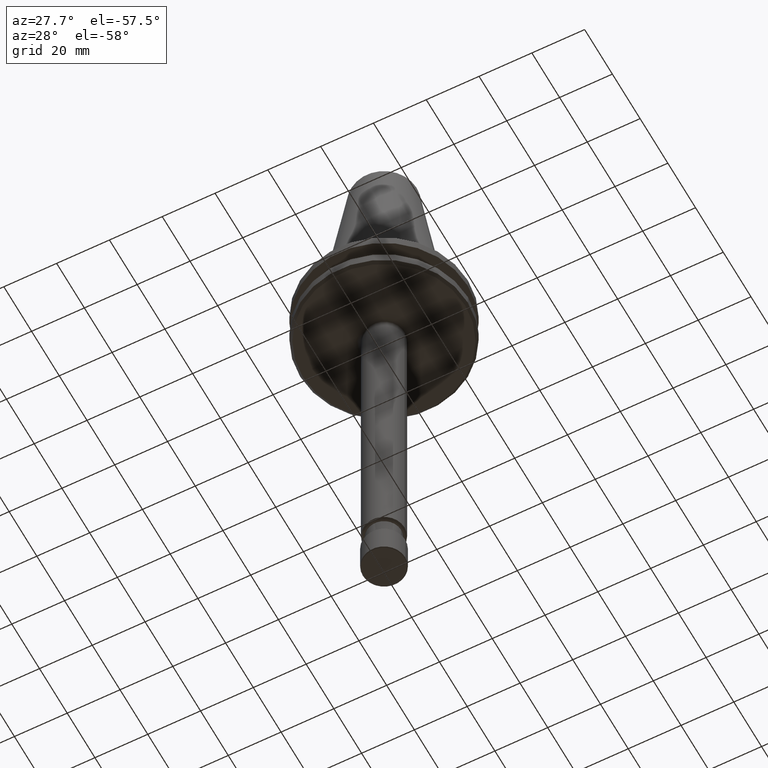
[diagram: clean part render]
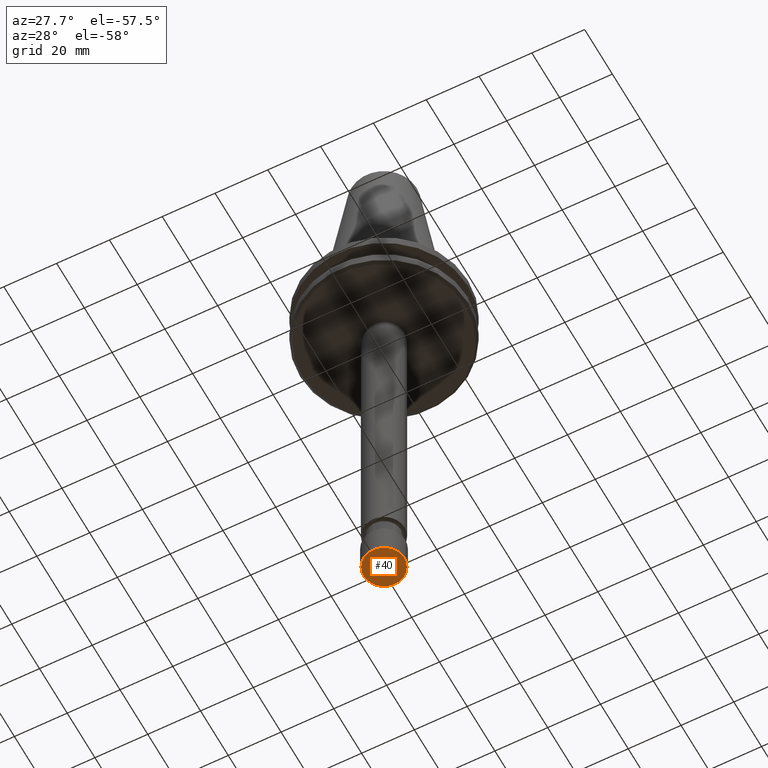
[diagram: same view with one face highlighted and labeled with its STEP entity id]
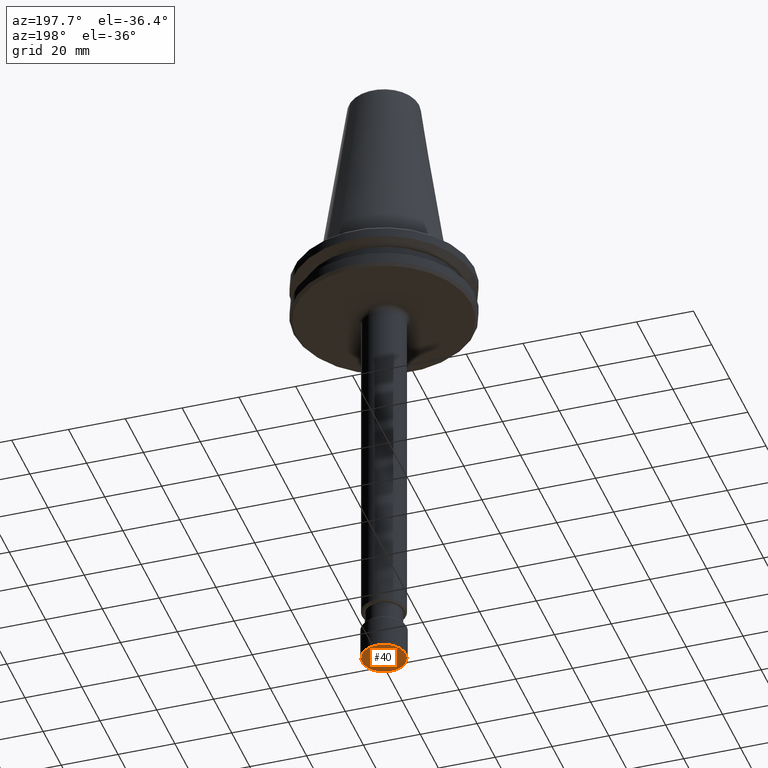
[diagram: same view with one face highlighted and labeled with its STEP entity id]
A machine part, auxiliary view. The second image highlights one B-rep face of the part: STEP entity #40.
A second angle (auxiliary view) of the same face is appended — the face is thin or edge-on in the first view.
In plain terms, the highlighted planar face has unit normal (0, -0, 1).
Its self-contained STEP definition (entity closure, byte-faithful):
#15 = EDGE_CURVE ( 'NONE', #169, #147, #807, .T. ) ;
#40 = ADVANCED_FACE ( 'NONE', ( #586 ), #193, .F. ) ;
#147 = VERTEX_POINT ( 'NONE', #176 ) ;
#169 = VERTEX_POINT ( 'NONE', #283 ) ;
#176 = CARTESIAN_POINT ( 'NONE',  ( 7.734513274300026000, 0.0000000000000000000, -66.60000000000022200 ) ) ;
#193 = PLANE ( 'NONE',  #316 ) ;
#225 = DIRECTION ( 'NONE',  ( 0.0000000000000000000, -0.0000000000000000000, 1.000000000000000000 ) ) ;
#228 = EDGE_LOOP ( 'NONE', ( #1211, #480 ) ) ;
#283 = CARTESIAN_POINT ( 'NONE',  ( -7.734513274300026000, 9.634610658756538300E-016, -66.60000000000022200 ) ) ;
#309 = AXIS2_PLACEMENT_3D ( 'NONE', #566, #862, #995 ) ;
#316 = AXIS2_PLACEMENT_3D ( 'NONE', #473, #225, #1221 ) ;
#473 = CARTESIAN_POINT ( 'NONE',  ( 0.0000000000000000000, 7.734513274300026000, -66.60000000000023600 ) ) ;
#480 = ORIENTED_EDGE ( 'NONE', *, *, #15, .F. ) ;
#566 = CARTESIAN_POINT ( 'NONE',  ( 0.0000000000000000000, 0.0000000000000000000, -66.60000000000022200 ) ) ;
#586 = FACE_OUTER_BOUND ( 'NONE', #228, .T. ) ;
#807 = CIRCLE ( 'NONE', #309, 7.734513274300026000 ) ;
#862 = DIRECTION ( 'NONE',  ( -0.0000000000000000000, -0.0000000000000000000, 1.000000000000000000 ) ) ;
#972 = CIRCLE ( 'NONE', #1091, 7.734513274300026000 ) ;
#988 = DIRECTION ( 'NONE',  ( 1.000000000000000000, 0.0000000000000000000, 0.0000000000000000000 ) ) ;
#995 = DIRECTION ( 'NONE',  ( 1.000000000000000000, 0.0000000000000000000, 0.0000000000000000000 ) ) ;
#1064 = CARTESIAN_POINT ( 'NONE',  ( 0.0000000000000000000, 0.0000000000000000000, -66.60000000000022200 ) ) ;
#1091 = AXIS2_PLACEMENT_3D ( 'NONE', #1064, #1214, #988 ) ;
#1177 = EDGE_CURVE ( 'NONE', #147, #169, #972, .T. ) ;
#1211 = ORIENTED_EDGE ( 'NONE', *, *, #1177, .F. ) ;
#1214 = DIRECTION ( 'NONE',  ( -0.0000000000000000000, -0.0000000000000000000, 1.000000000000000000 ) ) ;
#1221 = DIRECTION ( 'NONE',  ( 1.000000000000000000, 0.0000000000000000000, 0.0000000000000000000 ) ) ;